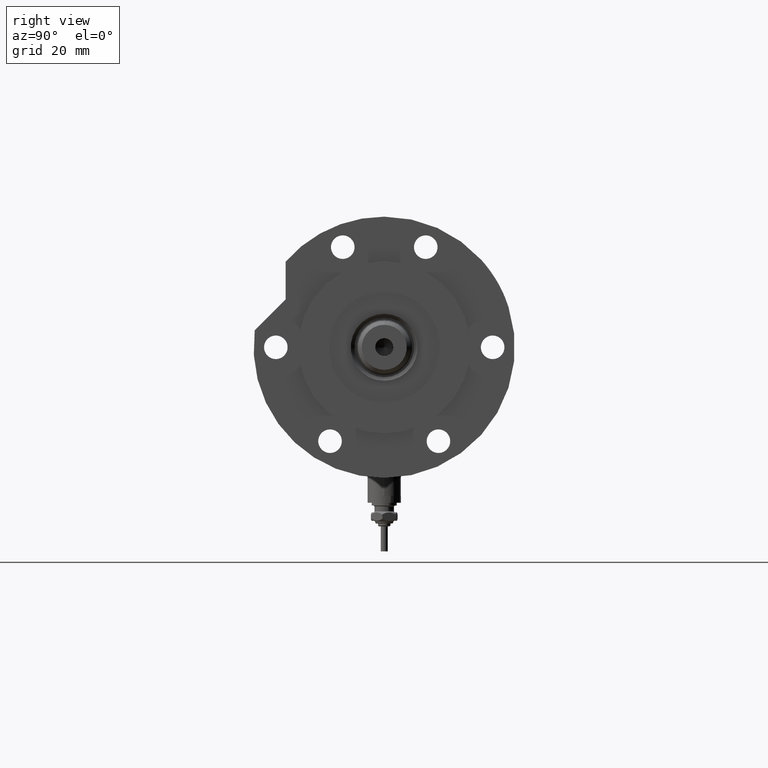
[diagram: clean part render]
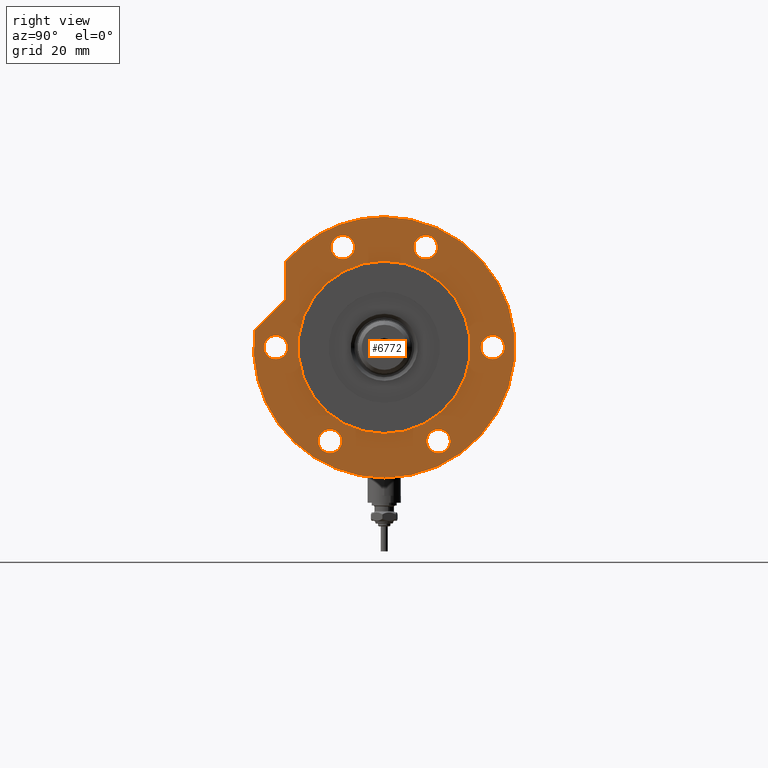
[diagram: same view with one face highlighted and labeled with its STEP entity id]
A machine part, right view. The second image highlights one B-rep face of the part: STEP entity #6772.
In plain terms, the highlighted planar face has unit normal (1, 0, -0).
Its self-contained STEP definition (entity closure, byte-faithful):
#46 = EDGE_CURVE ( 'NONE', #7289, #3141, #6014, .T. ) ;
#200 = CIRCLE ( 'NONE', #568, 4.250000000000003553 ) ;
#210 = ORIENTED_EDGE ( 'NONE', *, *, #2611, .F. ) ;
#235 = AXIS2_PLACEMENT_3D ( 'NONE', #4934, #6873, #4321 ) ;
#317 = EDGE_LOOP ( 'NONE', ( #2678, #4476 ) ) ;
#343 = AXIS2_PLACEMENT_3D ( 'NONE', #1650, #6071, #2949 ) ;
#355 = DIRECTION ( 'NONE',  ( 0.000000000000000000, 0.000000000000000000, 1.000000000000000000 ) ) ;
#361 = VERTEX_POINT ( 'NONE', #2243 ) ;
#362 = DIRECTION ( 'NONE',  ( 1.000000000000000000, -1.019675812477181804E-15, 0.000000000000000000 ) ) ;
#385 = EDGE_CURVE ( 'NONE', #7051, #6822, #1359, .T. ) ;
#399 = CARTESIAN_POINT ( 'NONE',  ( 31.78130176794011064, -14.92465386223865842, 17.00000000000000000 ) ) ;
#440 = AXIS2_PLACEMENT_3D ( 'NONE', #5533, #5569, #1195 ) ;
#489 = EDGE_CURVE ( 'NONE', #2712, #1743, #4446, .T. ) ;
#563 = VERTEX_POINT ( 'NONE', #3234 ) ;
#568 = AXIS2_PLACEMENT_3D ( 'NONE', #2167, #355, #7763 ) ;
#702 = ORIENTED_EDGE ( 'NONE', *, *, #1411, .F. ) ;
#740 = CIRCLE ( 'NONE', #235, 4.249999999999996447 ) ;
#744 = CARTESIAN_POINT ( 'NONE',  ( 0.000000000000000000, 0.000000000000000000, 17.00000000000000000 ) ) ;
#807 = ORIENTED_EDGE ( 'NONE', *, *, #3704, .F. ) ;
#817 = DIRECTION ( 'NONE',  ( 1.000000000000000000, 0.000000000000000000, 0.000000000000000000 ) ) ;
#832 = CIRCLE ( 'NONE', #3645, 4.250000000000000888 ) ;
#857 = DIRECTION ( 'NONE',  ( 0.000000000000000000, 0.000000000000000000, 1.000000000000000000 ) ) ;
#960 = DIRECTION ( 'NONE',  ( 0.000000000000000000, 0.000000000000000000, 1.000000000000000000 ) ) ;
#968 = ORIENTED_EDGE ( 'NONE', *, *, #6587, .F. ) ;
#1092 = CARTESIAN_POINT ( 'NONE',  ( 6.092310621118299352, 46.60347359688769586, 17.00000000000000000 ) ) ;
#1195 = DIRECTION ( 'NONE',  ( 1.000000000000000000, 0.000000000000000000, 0.000000000000000000 ) ) ;
#1244 = DIRECTION ( 'NONE',  ( 1.000000000000000000, 0.000000000000000000, 0.000000000000000000 ) ) ;
#1257 = DIRECTION ( 'NONE',  ( 1.000000000000000000, 0.000000000000000000, -0.000000000000000000 ) ) ;
#1279 = DIRECTION ( 'NONE',  ( 0.000000000000000000, 0.000000000000000000, 1.000000000000000000 ) ) ;
#1303 = CARTESIAN_POINT ( 'NONE',  ( -4.250000000000000888, -39.00000000000000000, 17.00000000000000000 ) ) ;
#1352 = CARTESIAN_POINT ( 'NONE',  ( -46.99999999999999289, 0.000000000000000000, 17.00000000000000000 ) ) ;
#1355 = CIRCLE ( 'NONE', #6911, 4.250000000000003553 ) ;
#1359 = LINE ( 'NONE', #5693, #7688 ) ;
#1411 = EDGE_CURVE ( 'NONE', #6822, #7006, #3962, .T. ) ;
#1431 = EDGE_LOOP ( 'NONE', ( #5696, #807 ) ) ;
#1449 = CARTESIAN_POINT ( 'NONE',  ( 40.28130176794012129, -14.92465386223865842, 17.00000000000000000 ) ) ;
#1461 = DIRECTION ( 'NONE',  ( 0.000000000000000000, 0.000000000000000000, 1.000000000000000000 ) ) ;
#1472 = EDGE_LOOP ( 'NONE', ( #5279, #4543 ) ) ;
#1531 = CARTESIAN_POINT ( 'NONE',  ( 3.617158501555293296E-14, 35.47361286101151734, 17.00000000000000000 ) ) ;
#1650 = CARTESIAN_POINT ( 'NONE',  ( 0.000000000000000000, 39.00000000000000000, 17.00000000000000000 ) ) ;
#1674 = DIRECTION ( 'NONE',  ( 0.000000000000000000, 0.000000000000000000, 1.000000000000000000 ) ) ;
#1718 = CARTESIAN_POINT ( 'NONE',  ( -33.77499074759315079, 19.49999999999992539, 17.00000000000000000 ) ) ;
#1743 = VERTEX_POINT ( 'NONE', #7450 ) ;
#1771 = VERTEX_POINT ( 'NONE', #1449 ) ;
#1853 = FACE_BOUND ( 'NONE', #317, .T. ) ;
#1898 = FACE_BOUND ( 'NONE', #2697, .T. ) ;
#1969 = AXIS2_PLACEMENT_3D ( 'NONE', #5147, #2669, #5269 ) ;
#2011 = AXIS2_PLACEMENT_3D ( 'NONE', #3337, #7599, #5202 ) ;
#2120 = CARTESIAN_POINT ( 'NONE',  ( 30.83217135699462830, 35.47361286101148892, 17.00000000000000000 ) ) ;
#2167 = CARTESIAN_POINT ( 'NONE',  ( 36.03130176794011419, -14.92465386223865842, 17.00000000000000000 ) ) ;
#2243 = CARTESIAN_POINT ( 'NONE',  ( 40.28130176794012129, 14.92465386223865842, 17.00000000000000000 ) ) ;
#2382 = CIRCLE ( 'NONE', #7165, 31.00000000000000711 ) ;
#2399 = CARTESIAN_POINT ( 'NONE',  ( -29.52499074759301578, -19.50000000000015277, 17.00000000000000000 ) ) ;
#2512 = EDGE_CURVE ( 'NONE', #6595, #4369, #740, .T. ) ;
#2611 = EDGE_CURVE ( 'NONE', #2935, #3017, #2382, .T. ) ;
#2615 = EDGE_CURVE ( 'NONE', #5067, #4501, #1355, .T. ) ;
#2669 = DIRECTION ( 'NONE',  ( 0.000000000000000000, 0.000000000000000000, 1.000000000000000000 ) ) ;
#2678 = ORIENTED_EDGE ( 'NONE', *, *, #4683, .F. ) ;
#2697 = EDGE_LOOP ( 'NONE', ( #2948, #4293 ) ) ;
#2712 = VERTEX_POINT ( 'NONE', #1303 ) ;
#2742 = DIRECTION ( 'NONE',  ( 0.000000000000000000, 0.000000000000000000, 1.000000000000000000 ) ) ;
#2790 = CARTESIAN_POINT ( 'NONE',  ( 4.250000000000000888, 39.00000000000000000, 17.00000000000000000 ) ) ;
#2854 = AXIS2_PLACEMENT_3D ( 'NONE', #744, #6146, #1244 ) ;
#2871 = CARTESIAN_POINT ( 'NONE',  ( 0.000000000000000000, 0.000000000000000000, 17.00000000000000000 ) ) ;
#2878 = ORIENTED_EDGE ( 'NONE', *, *, #6078, .T. ) ;
#2935 = VERTEX_POINT ( 'NONE', #5835 ) ;
#2948 = ORIENTED_EDGE ( 'NONE', *, *, #2615, .F. ) ;
#2949 = DIRECTION ( 'NONE',  ( 1.000000000000000000, 0.000000000000000000, 0.000000000000000000 ) ) ;
#3003 = CARTESIAN_POINT ( 'NONE',  ( -29.52499074759315434, 19.49999999999992539, 17.00000000000000000 ) ) ;
#3017 = VERTEX_POINT ( 'NONE', #4203 ) ;
#3057 = EDGE_CURVE ( 'NONE', #3017, #2935, #4199, .T. ) ;
#3141 = VERTEX_POINT ( 'NONE', #6201 ) ;
#3180 = DIRECTION ( 'NONE',  ( 1.000000000000000000, 0.000000000000000000, 0.000000000000000000 ) ) ;
#3234 = CARTESIAN_POINT ( 'NONE',  ( 46.99999999999999289, 5.755839955992559063E-15, 17.00000000000000000 ) ) ;
#3337 = CARTESIAN_POINT ( 'NONE',  ( 36.03130176794011419, 14.92465386223865842, 17.00000000000000000 ) ) ;
#3423 = ORIENTED_EDGE ( 'NONE', *, *, #6387, .T. ) ;
#3577 = CARTESIAN_POINT ( 'NONE',  ( 0.000000000000000000, 0.000000000000000000, 17.00000000000000000 ) ) ;
#3605 = EDGE_CURVE ( 'NONE', #1743, #2712, #6668, .T. ) ;
#3643 = ORIENTED_EDGE ( 'NONE', *, *, #46, .F. ) ;
#3645 = AXIS2_PLACEMENT_3D ( 'NONE', #4571, #1461, #7038 ) ;
#3704 = EDGE_CURVE ( 'NONE', #361, #4779, #5521, .T. ) ;
#3775 = CARTESIAN_POINT ( 'NONE',  ( 36.03130176794011419, -14.92465386223865842, 17.00000000000000000 ) ) ;
#3798 = CARTESIAN_POINT ( 'NONE',  ( -38.02499074759302289, -19.50000000000015277, 17.00000000000000000 ) ) ;
#3882 = CIRCLE ( 'NONE', #7248, 46.99999999999999289 ) ;
#3962 = LINE ( 'NONE', #1531, #5247 ) ;
#4008 = CIRCLE ( 'NONE', #2854, 46.99999999999999289 ) ;
#4055 = DIRECTION ( 'NONE',  ( 1.000000000000000000, 0.000000000000000000, 0.000000000000000000 ) ) ;
#4090 = ORIENTED_EDGE ( 'NONE', *, *, #385, .F. ) ;
#4198 = DIRECTION ( 'NONE',  ( 0.000000000000000000, 0.000000000000000000, 1.000000000000000000 ) ) ;
#4199 = CIRCLE ( 'NONE', #7833, 31.00000000000000711 ) ;
#4203 = CARTESIAN_POINT ( 'NONE',  ( -31.00000000000000711, 0.000000000000000000, 17.00000000000000000 ) ) ;
#4241 = VERTEX_POINT ( 'NONE', #1352 ) ;
#4293 = ORIENTED_EDGE ( 'NONE', *, *, #5754, .F. ) ;
#4315 = FACE_BOUND ( 'NONE', #1472, .T. ) ;
#4321 = DIRECTION ( 'NONE',  ( 1.000000000000000000, 0.000000000000000000, 0.000000000000000000 ) ) ;
#4369 = VERTEX_POINT ( 'NONE', #3003 ) ;
#4410 = CIRCLE ( 'NONE', #4671, 4.249999999999996447 ) ;
#4446 = CIRCLE ( 'NONE', #6019, 4.250000000000000888 ) ;
#4459 = EDGE_LOOP ( 'NONE', ( #6214, #3643 ) ) ;
#4476 = ORIENTED_EDGE ( 'NONE', *, *, #6687, .F. ) ;
#4490 = DIRECTION ( 'NONE',  ( 1.000000000000000000, 0.000000000000000000, 0.000000000000000000 ) ) ;
#4501 = VERTEX_POINT ( 'NONE', #2399 ) ;
#4543 = ORIENTED_EDGE ( 'NONE', *, *, #3605, .F. ) ;
#4571 = CARTESIAN_POINT ( 'NONE',  ( 0.000000000000000000, 39.00000000000000000, 17.00000000000000000 ) ) ;
#4626 = DIRECTION ( 'NONE',  ( 1.000000000000000000, 0.000000000000000000, 0.000000000000000000 ) ) ;
#4639 = VERTEX_POINT ( 'NONE', #399 ) ;
#4649 = EDGE_LOOP ( 'NONE', ( #7900, #968 ) ) ;
#4671 = AXIS2_PLACEMENT_3D ( 'NONE', #1718, #1674, #4626 ) ;
#4683 = EDGE_CURVE ( 'NONE', #4639, #1771, #7364, .T. ) ;
#4737 = DIRECTION ( 'NONE',  ( 1.000000000000000000, 0.000000000000000000, 0.000000000000000000 ) ) ;
#4779 = VERTEX_POINT ( 'NONE', #5442 ) ;
#4856 = CARTESIAN_POINT ( 'NONE',  ( 0.000000000000000000, 0.000000000000000000, 17.00000000000000000 ) ) ;
#4862 = AXIS2_PLACEMENT_3D ( 'NONE', #6862, #6230, #4925 ) ;
#4925 = DIRECTION ( 'NONE',  ( 1.000000000000000000, 0.000000000000000000, 0.000000000000000000 ) ) ;
#4929 = FACE_BOUND ( 'NONE', #4649, .T. ) ;
#4934 = CARTESIAN_POINT ( 'NONE',  ( -33.77499074759315079, 19.49999999999992539, 17.00000000000000000 ) ) ;
#5067 = VERTEX_POINT ( 'NONE', #3798 ) ;
#5147 = CARTESIAN_POINT ( 'NONE',  ( 36.03130176794011419, 14.92465386223865842, 17.00000000000000000 ) ) ;
#5180 = CARTESIAN_POINT ( 'NONE',  ( 0.000000000000000000, -39.00000000000000000, 17.00000000000000000 ) ) ;
#5202 = DIRECTION ( 'NONE',  ( 1.000000000000000000, 0.000000000000000000, 0.000000000000000000 ) ) ;
#5244 = DIRECTION ( 'NONE',  ( 0.000000000000000000, 0.000000000000000000, 1.000000000000000000 ) ) ;
#5247 = VECTOR ( 'NONE', #362, 1000.000000000000000 ) ;
#5269 = DIRECTION ( 'NONE',  ( 1.000000000000000000, 0.000000000000000000, 0.000000000000000000 ) ) ;
#5279 = ORIENTED_EDGE ( 'NONE', *, *, #489, .F. ) ;
#5442 = CARTESIAN_POINT ( 'NONE',  ( 31.78130176794011064, 14.92465386223865842, 17.00000000000000000 ) ) ;
#5515 = ORIENTED_EDGE ( 'NONE', *, *, #3057, .F. ) ;
#5521 = CIRCLE ( 'NONE', #2011, 4.250000000000003553 ) ;
#5533 = CARTESIAN_POINT ( 'NONE',  ( 0.000000000000000000, 0.000000000000000000, 17.00000000000000000 ) ) ;
#5543 = DIRECTION ( 'NONE',  ( 0.7071067811865511255, -0.7071067811865440200, 0.000000000000000000 ) ) ;
#5569 = DIRECTION ( 'NONE',  ( 0.000000000000000000, 0.000000000000000000, 1.000000000000000000 ) ) ;
#5592 = CARTESIAN_POINT ( 'NONE',  ( 17.22217135699461110, 35.47361286101150313, 17.00000000000000000 ) ) ;
#5693 = CARTESIAN_POINT ( 'NONE',  ( 26.34789210900296652, 26.34789210900323297, 17.00000000000000000 ) ) ;
#5696 = ORIENTED_EDGE ( 'NONE', *, *, #7168, .F. ) ;
#5737 = EDGE_LOOP ( 'NONE', ( #5515, #210 ) ) ;
#5754 = EDGE_CURVE ( 'NONE', #4501, #5067, #6474, .T. ) ;
#5768 = DIRECTION ( 'NONE',  ( 0.000000000000000000, 0.000000000000000000, 1.000000000000000000 ) ) ;
#5835 = CARTESIAN_POINT ( 'NONE',  ( 31.00000000000000711, 3.796405077356795904E-15, 17.00000000000000000 ) ) ;
#5955 = AXIS2_PLACEMENT_3D ( 'NONE', #3775, #2742, #3180 ) ;
#6003 = EDGE_CURVE ( 'NONE', #4241, #563, #4008, .T. ) ;
#6014 = CIRCLE ( 'NONE', #343, 4.250000000000000888 ) ;
#6019 = AXIS2_PLACEMENT_3D ( 'NONE', #5180, #5768, #4490 ) ;
#6071 = DIRECTION ( 'NONE',  ( 0.000000000000000000, 0.000000000000000000, 1.000000000000000000 ) ) ;
#6078 = EDGE_CURVE ( 'NONE', #7051, #4241, #3882, .T. ) ;
#6146 = DIRECTION ( 'NONE',  ( 0.000000000000000000, 0.000000000000000000, 1.000000000000000000 ) ) ;
#6175 = ORIENTED_EDGE ( 'NONE', *, *, #6003, .T. ) ;
#6201 = CARTESIAN_POINT ( 'NONE',  ( -4.250000000000000888, 39.00000000000000000, 17.00000000000000000 ) ) ;
#6214 = ORIENTED_EDGE ( 'NONE', *, *, #7170, .F. ) ;
#6230 = DIRECTION ( 'NONE',  ( 0.000000000000000000, 0.000000000000000000, 1.000000000000000000 ) ) ;
#6351 = AXIS2_PLACEMENT_3D ( 'NONE', #6389, #857, #817 ) ;
#6387 = EDGE_CURVE ( 'NONE', #563, #7006, #7377, .T. ) ;
#6389 = CARTESIAN_POINT ( 'NONE',  ( -33.77499074759302289, -19.50000000000015277, 17.00000000000000000 ) ) ;
#6474 = CIRCLE ( 'NONE', #6351, 4.250000000000003553 ) ;
#6579 = CARTESIAN_POINT ( 'NONE',  ( -33.77499074759302289, -19.50000000000015277, 17.00000000000000000 ) ) ;
#6587 = EDGE_CURVE ( 'NONE', #4369, #6595, #4410, .T. ) ;
#6595 = VERTEX_POINT ( 'NONE', #6618 ) ;
#6618 = CARTESIAN_POINT ( 'NONE',  ( -38.02499074759315079, 19.49999999999992539, 17.00000000000000000 ) ) ;
#6668 = CIRCLE ( 'NONE', #4862, 4.250000000000000888 ) ;
#6678 = PLANE ( 'NONE',  #6749 ) ;
#6687 = EDGE_CURVE ( 'NONE', #1771, #4639, #200, .T. ) ;
#6712 = FACE_BOUND ( 'NONE', #5737, .T. ) ;
#6749 = AXIS2_PLACEMENT_3D ( 'NONE', #4856, #4198, #1257 ) ;
#6772 = ADVANCED_FACE ( 'NONE', ( #7444, #7888, #1853, #4315, #1898, #4929, #6793, #6712 ), #6678, .T. ) ;
#6793 = FACE_OUTER_BOUND ( 'NONE', #7663, .T. ) ;
#6822 = VERTEX_POINT ( 'NONE', #5592 ) ;
#6854 = CARTESIAN_POINT ( 'NONE',  ( 0.000000000000000000, 0.000000000000000000, 17.00000000000000000 ) ) ;
#6862 = CARTESIAN_POINT ( 'NONE',  ( 0.000000000000000000, -39.00000000000000000, 17.00000000000000000 ) ) ;
#6873 = DIRECTION ( 'NONE',  ( 0.000000000000000000, 0.000000000000000000, 1.000000000000000000 ) ) ;
#6911 = AXIS2_PLACEMENT_3D ( 'NONE', #6579, #960, #7873 ) ;
#7006 = VERTEX_POINT ( 'NONE', #2120 ) ;
#7038 = DIRECTION ( 'NONE',  ( 1.000000000000000000, 0.000000000000000000, 0.000000000000000000 ) ) ;
#7051 = VERTEX_POINT ( 'NONE', #1092 ) ;
#7131 = CIRCLE ( 'NONE', #1969, 4.250000000000003553 ) ;
#7165 = AXIS2_PLACEMENT_3D ( 'NONE', #3577, #5244, #4055 ) ;
#7168 = EDGE_CURVE ( 'NONE', #4779, #361, #7131, .T. ) ;
#7170 = EDGE_CURVE ( 'NONE', #3141, #7289, #832, .T. ) ;
#7248 = AXIS2_PLACEMENT_3D ( 'NONE', #6854, #1279, #7914 ) ;
#7289 = VERTEX_POINT ( 'NONE', #2790 ) ;
#7364 = CIRCLE ( 'NONE', #5955, 4.250000000000003553 ) ;
#7377 = CIRCLE ( 'NONE', #440, 46.99999999999999289 ) ;
#7444 = FACE_BOUND ( 'NONE', #4459, .T. ) ;
#7450 = CARTESIAN_POINT ( 'NONE',  ( 4.250000000000000888, -39.00000000000000000, 17.00000000000000000 ) ) ;
#7599 = DIRECTION ( 'NONE',  ( 0.000000000000000000, 0.000000000000000000, 1.000000000000000000 ) ) ;
#7663 = EDGE_LOOP ( 'NONE', ( #702, #4090, #2878, #6175, #3423 ) ) ;
#7688 = VECTOR ( 'NONE', #5543, 999.9999999999998863 ) ;
#7763 = DIRECTION ( 'NONE',  ( 1.000000000000000000, 0.000000000000000000, 0.000000000000000000 ) ) ;
#7816 = DIRECTION ( 'NONE',  ( 0.000000000000000000, 0.000000000000000000, 1.000000000000000000 ) ) ;
#7833 = AXIS2_PLACEMENT_3D ( 'NONE', #2871, #7816, #4737 ) ;
#7873 = DIRECTION ( 'NONE',  ( 1.000000000000000000, 0.000000000000000000, 0.000000000000000000 ) ) ;
#7888 = FACE_BOUND ( 'NONE', #1431, .T. ) ;
#7900 = ORIENTED_EDGE ( 'NONE', *, *, #2512, .F. ) ;
#7914 = DIRECTION ( 'NONE',  ( 1.000000000000000000, 0.000000000000000000, 0.000000000000000000 ) ) ;